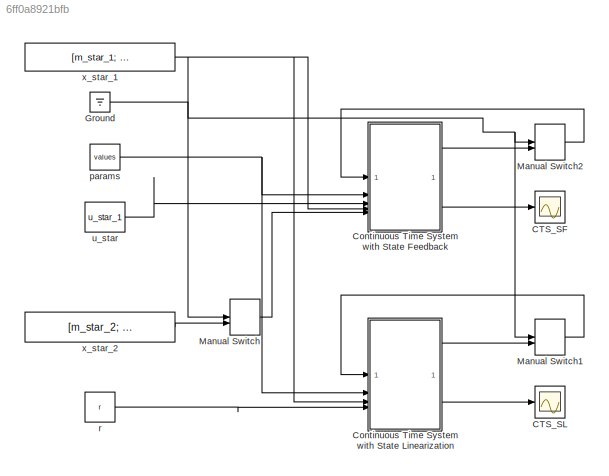
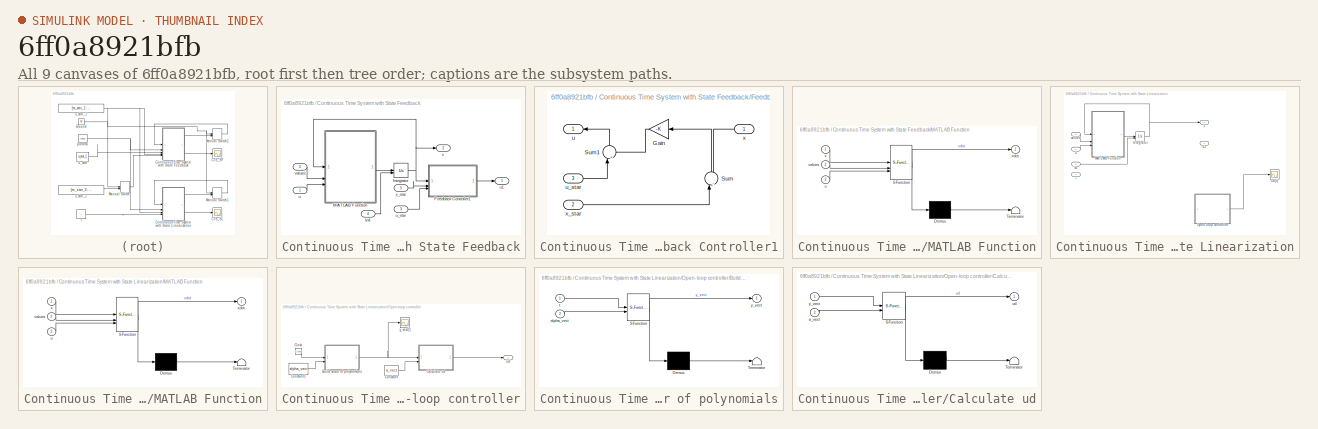
[diagram: thumbnail index - all 9 canvases of the model, root first then tree order]
MODEL slx_6ff0a8921bfb
KIND model
CONFIG AbsTol = auto
CONFIG EnableMultiTasking = off
CONFIG FixedStep = auto
CONFIG MaxStep = auto
CONFIG MinStep = auto
CONFIG RelTol = 1e-3
CONFIG SampleTimeConstraint = Unconstrained
CONFIG SolverName = VariableStepAuto
CONFIG StartTime = 0.0
CONFIG StopTime = 10.0
BLOCK [Scope] CTS_SF
  Floating = off
  NumInputPorts = 1
  ScopeSpecificationString = Simulink.scopes.TimeScopeBlockCfg('CurrentConfiguration', extmgr.ConfigurationSet(extmgr.Configuration('Core','General UI',true),extmgr.Configuration('Core','Source UI',true),extmgr.Configuration('Sources','WiredSimulink',true,'DataLoggingVariableName','ScopeData1'),extmgr.Configuration('Visuals','Time Domain',true,'SerializedDisplays',{struct('MinYLimReal','-341.0277','MaxYLimReal','524.18947','Y...<+1689ch>
BLOCK [Scope] CTS_SL
  Floating = off
  NumInputPorts = 1
  ScopeSpecificationString = Simulink.scopes.TimeScopeBlockCfg('CurrentConfiguration', extmgr.ConfigurationSet(extmgr.Configuration('Core','General UI',true),extmgr.Configuration('Core','Source UI',true),extmgr.Configuration('Sources','WiredSimulink',true),extmgr.Configuration('Visuals','Time Domain',true,'SerializedDisplays',{struct('MinYLimReal','-16.38534','MaxYLimReal','496.64074','YLabelReal','','MinYLimMag','0.00000','M...<+1626ch>
BLOCK [SubSystem] Continuous Time System with State Feedback
BLOCK [SubSystem] Continuous Time System with State Feedback/Feedback Controller1
BLOCK [Gain] Continuous Time System with State Feedback/Feedback Controller1/Gain
  Gain = -K
  Multiplication = Matrix(K*u)
  NameLocation = top
BLOCK [Sum] Continuous Time System with State Feedback/Feedback Controller1/Sum
  Inputs = |-+
  NameLocation = right
BLOCK [Sum] Continuous Time System with State Feedback/Feedback Controller1/Sum1
  Inputs = |++
  NameLocation = right
BLOCK [Outport] Continuous Time System with State Feedback/Feedback Controller1/u
  NameLocation = top
BLOCK [Inport] Continuous Time System with State Feedback/Feedback Controller1/u_star
  Port = 3
BLOCK [Inport] Continuous Time System with State Feedback/Feedback Controller1/x
  NameLocation = top
BLOCK [Inport] Continuous Time System with State Feedback/Feedback Controller1/x_star
  Port = 2
BLOCK [Inport] Continuous Time System with State Feedback/In4
  Port = 4
BLOCK [Integrator] Continuous Time System with State Feedback/Integrator
  InitialConditionSource = external
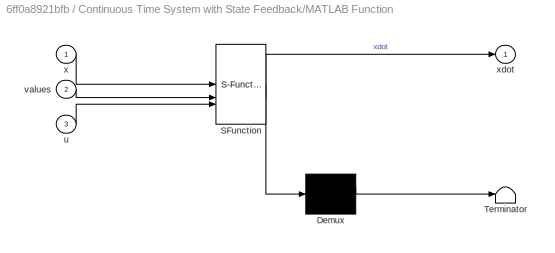
BLOCK [SubSystem] Continuous Time System with State Feedback/MATLAB Function
  ErrorFcn = Stateflow.Translate.translate
  PermitHierarchicalResolution = ExplicitOnly
  SFBlockType = MATLAB Function
  TreatAsAtomicUnit = on
BLOCK [Demux] Continuous Time System with State Feedback/MATLAB Function/ Demux 
  Outputs = 1
BLOCK [S-Function] Continuous Time System with State Feedback/MATLAB Function/ SFunction 
  EnableBusSupport = on
  FunctionName = sf_sfun
  PortCounts = [3 2]
  SFcnIsStateOwnerBlock = off
  SFunctionDeploymentMode = off
  Tag = Stateflow S-Function 2
BLOCK [Terminator] Continuous Time System with State Feedback/MATLAB Function/ Terminator 
BLOCK [Inport] Continuous Time System with State Feedback/MATLAB Function/u
  Port = 3
BLOCK [Inport] Continuous Time System with State Feedback/MATLAB Function/values
  Port = 2
BLOCK [Inport] Continuous Time System with State Feedback/MATLAB Function/x
BLOCK [Outport] Continuous Time System with State Feedback/MATLAB Function/xdot
BLOCK [Inport] Continuous Time System with State Feedback/u
BLOCK [Outport] Continuous Time System with State Feedback/u1
BLOCK [Inport] Continuous Time System with State Feedback/u_star
  Port = 3
BLOCK [Inport] Continuous Time System with State Feedback/values
  Port = 2
BLOCK [Outport] Continuous Time System with State Feedback/x
  Port = 2
BLOCK [Inport] Continuous Time System with State Feedback/x_star
  Port = 5
BLOCK [SubSystem] Continuous Time System with State Linearization
BLOCK [Integrator] Continuous Time System with State Linearization/Integrator
  InitialConditionSource = external
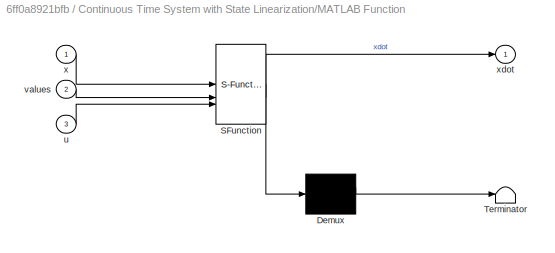
BLOCK [SubSystem] Continuous Time System with State Linearization/MATLAB Function
  ErrorFcn = Stateflow.Translate.translate
  PermitHierarchicalResolution = ExplicitOnly
  SFBlockType = MATLAB Function
  TreatAsAtomicUnit = on
BLOCK [Demux] Continuous Time System with State Linearization/MATLAB Function/ Demux 
  Outputs = 1
BLOCK [S-Function] Continuous Time System with State Linearization/MATLAB Function/ SFunction 
  EnableBusSupport = on
  FunctionName = sf_sfun
  PortCounts = [3 2]
  SFcnIsStateOwnerBlock = off
  SFunctionDeploymentMode = off
  Tag = Stateflow S-Function 1
BLOCK [Terminator] Continuous Time System with State Linearization/MATLAB Function/ Terminator 
BLOCK [Inport] Continuous Time System with State Linearization/MATLAB Function/u
  Port = 3
BLOCK [Inport] Continuous Time System with State Linearization/MATLAB Function/values
  Port = 2
BLOCK [Inport] Continuous Time System with State Linearization/MATLAB Function/x
BLOCK [Outport] Continuous Time System with State Linearization/MATLAB Function/xdot
BLOCK [SubSystem] Continuous Time System with State Linearization/Open-loop controller
BLOCK [SubSystem] Continuous Time System with State Linearization/Open-loop controller/Build vector of polynomials
  ErrorFcn = Stateflow.Translate.translate
  PermitHierarchicalResolution = ExplicitOnly
  SFBlockType = MATLAB Function
  TreatAsAtomicUnit = on
BLOCK [Demux] Continuous Time System with State Linearization/Open-loop controller/Build vector of polynomials/ Demux 
  Outputs = 1
BLOCK [S-Function] Continuous Time System with State Linearization/Open-loop controller/Build vector of polynomials/ SFunction 
  EnableBusSupport = off
  FunctionName = sf_sfun
  PortCounts = [2 2]
  SFcnIsStateOwnerBlock = off
  SFunctionDeploymentMode = off
  Tag = Stateflow S-Function 4
BLOCK [Terminator] Continuous Time System with State Linearization/Open-loop controller/Build vector of polynomials/ Terminator 
BLOCK [Inport] Continuous Time System with State Linearization/Open-loop controller/Build vector of polynomials/alpha_vect
  Port = 2
BLOCK [Inport] Continuous Time System with State Linearization/Open-loop controller/Build vector of polynomials/t
BLOCK [Outport] Continuous Time System with State Linearization/Open-loop controller/Build vector of polynomials/y_vect
BLOCK [SubSystem] Continuous Time System with State Linearization/Open-loop controller/Calculate ud
  ErrorFcn = Stateflow.Translate.translate
  PermitHierarchicalResolution = ExplicitOnly
  SFBlockType = MATLAB Function
  TreatAsAtomicUnit = on
BLOCK [Demux] Continuous Time System with State Linearization/Open-loop controller/Calculate ud/ Demux 
  Outputs = 1
BLOCK [S-Function] Continuous Time System with State Linearization/Open-loop controller/Calculate ud/ SFunction 
  EnableBusSupport = off
  FunctionName = sf_sfun
  PortCounts = [2 2]
  SFcnIsStateOwnerBlock = off
  SFunctionDeploymentMode = off
  Tag = Stateflow S-Function 5
BLOCK [Terminator] Continuous Time System with State Linearization/Open-loop controller/Calculate ud/ Terminator 
BLOCK [Inport] Continuous Time System with State Linearization/Open-loop controller/Calculate ud/a_vect
  Port = 2
BLOCK [Outport] Continuous Time System with State Linearization/Open-loop controller/Calculate ud/ud
BLOCK [Inport] Continuous Time System with State Linearization/Open-loop controller/Calculate ud/y_vect
BLOCK [Clock] Continuous Time System with State Linearization/Open-loop controller/Clock
BLOCK [Constant] Continuous Time System with State Linearization/Open-loop controller/Constant
  Value = a_vect
  VectorParams1D = off
BLOCK [Constant] Continuous Time System with State Linearization/Open-loop controller/Constant1
  Value = alpha_vect
  VectorParams1D = off
BLOCK [Outport] Continuous Time System with State Linearization/Open-loop controller/ud
BLOCK [Scope] Continuous Time System with State Linearization/Open-loop controller/y_vect(t)
  Floating = off
  NumInputPorts = 1
  ScopeSpecificationString = Simulink.scopes.TimeScopeBlockCfg('CurrentConfiguration', extmgr.ConfigurationSet(extmgr.Configuration('Core','General UI',true),extmgr.Configuration('Core','Source UI',true),extmgr.Configuration('Sources','WiredSimulink',true,'DataLoggingVariableName','ScopeData5'),extmgr.Configuration('Visuals','Time Domain',true,'SerializedDisplays',{struct('MinYLimReal','-18.99518','MaxYLimReal','113.22169','Y...<+1494ch>
BLOCK [Inport] Continuous Time System with State Linearization/r
  Port = 4
BLOCK [Inport] Continuous Time System with State Linearization/u
BLOCK [Outport] Continuous Time System with State Linearization/u2
BLOCK [Scope] Continuous Time System with State Linearization/ud(t)
  Floating = off
  NumInputPorts = 1
  ScopeSpecificationString = Simulink.scopes.TimeScopeBlockCfg('CurrentConfiguration', extmgr.ConfigurationSet(extmgr.Configuration('Core','General UI',true),extmgr.Configuration('Core','Source UI',true),extmgr.Configuration('Sources','WiredSimulink',true,'DataLoggingVariableName','ScopeData2'),extmgr.Configuration('Visuals','Time Domain',true,'SerializedDisplays',{struct('MinYLimReal','-0.01957','MaxYLimReal','0.17581','YLab...<+1409ch>
BLOCK [Inport] Continuous Time System with State Linearization/values
  Port = 2
BLOCK [Outport] Continuous Time System with State Linearization/x
  Port = 2
BLOCK [Inport] Continuous Time System with State Linearization/x0
  Port = 3
BLOCK [Ground] Ground
BLOCK [ManualSwitch] Manual Switch
  CurrentSetting = 0
BLOCK [ManualSwitch] Manual Switch1
  CurrentSetting = 0
BLOCK [ManualSwitch] Manual Switch2
  CurrentSetting = 0
BLOCK [Constant] params
  Value = values
BLOCK [Constant] r
  Value = r
BLOCK [Constant] u_star
  Value = u_star_1
BLOCK [Constant] x_star_1
  Value = [m_star_1; omega_star_1]
BLOCK [Constant] x_star_2
  Value = [m_star_2; omega_star_2]
LINE Continuous Time System with State Feedback/Feedback Controller1/Gain:1 -> Continuous Time System with State Feedback/Feedback Controller1/Sum1:2
LINE Continuous Time System with State Feedback/Feedback Controller1/Sum1:1 -> Continuous Time System with State Feedback/Feedback Controller1/u:1
LINE Continuous Time System with State Feedback/Feedback Controller1/Sum:1 -> Continuous Time System with State Feedback/Feedback Controller1/Gain:1
LINE Continuous Time System with State Feedback/Feedback Controller1/u_star:1 -> Continuous Time System with State Feedback/Feedback Controller1/Sum1:1
LINE Continuous Time System with State Feedback/Feedback Controller1/x:1 -> Continuous Time System with State Feedback/Feedback Controller1/Sum:2
LINE Continuous Time System with State Feedback/Feedback Controller1/x_star:1 -> Continuous Time System with State Feedback/Feedback Controller1/Sum:1
LINE Continuous Time System with State Feedback/Feedback Controller1:1 -> Continuous Time System with State Feedback/u1:1
LINE Continuous Time System with State Feedback/In4:1 -> Continuous Time System with State Feedback/Integrator:2
NET Continuous Time System with State Feedback/Integrator:1 -> Continuous Time System with State Feedback/Feedback Controller1:1, Continuous Time System with State Feedback/MATLAB Function:1, Continuous Time System with State Feedback/x:1
LINE Continuous Time System with State Feedback/MATLAB Function:1 -> Continuous Time System with State Feedback/Integrator:1
LINE Continuous Time System with State Feedback/u:1 -> Continuous Time System with State Feedback/MATLAB Function:3
LINE Continuous Time System with State Feedback/u_star:1 -> Continuous Time System with State Feedback/Feedback Controller1:3
LINE Continuous Time System with State Feedback/values:1 -> Continuous Time System with State Feedback/MATLAB Function:2
LINE Continuous Time System with State Feedback/x_star:1 -> Continuous Time System with State Feedback/Feedback Controller1:2
LINE Continuous Time System with State Feedback:1 -> Manual Switch2:2
LINE Continuous Time System with State Feedback:2 -> CTS_SF:1
NET Continuous Time System with State Linearization/Integrator:1 -> Continuous Time System with State Linearization/MATLAB Function:1, Continuous Time System with State Linearization/x:1
LINE Continuous Time System with State Linearization/MATLAB Function:1 -> Continuous Time System with State Linearization/Integrator:1
NET Continuous Time System with State Linearization/Open-loop controller/Build vector of polynomials:1 -> Continuous Time System with State Linearization/Open-loop controller/Calculate ud:1, Continuous Time System with State Linearization/Open-loop controller/y_vect(t):1
LINE Continuous Time System with State Linearization/Open-loop controller/Calculate ud:1 -> Continuous Time System with State Linearization/Open-loop controller/ud:1
LINE Continuous Time System with State Linearization/Open-loop controller/Clock:1 -> Continuous Time System with State Linearization/Open-loop controller/Build vector of polynomials:1
LINE Continuous Time System with State Linearization/Open-loop controller/Constant1:1 -> Continuous Time System with State Linearization/Open-loop controller/Build vector of polynomials:2
LINE Continuous Time System with State Linearization/Open-loop controller/Constant:1 -> Continuous Time System with State Linearization/Open-loop controller/Calculate ud:2
LINE Continuous Time System with State Linearization/Open-loop controller:1 -> Continuous Time System with State Linearization/ud(t):1
LINE Continuous Time System with State Linearization/u:1 -> Continuous Time System with State Linearization/MATLAB Function:3
LINE Continuous Time System with State Linearization/values:1 -> Continuous Time System with State Linearization/MATLAB Function:2
LINE Continuous Time System with State Linearization/x0:1 -> Continuous Time System with State Linearization/Integrator:2
LINE Continuous Time System with State Linearization:1 -> Manual Switch1:2
LINE Continuous Time System with State Linearization:2 -> CTS_SL:1
NET Ground:1 -> Manual Switch1:1, Manual Switch2:1
LINE Manual Switch1:1 -> Continuous Time System with State Linearization:1
LINE Manual Switch2:1 -> Continuous Time System with State Feedback:1
LINE Manual Switch:1 -> Continuous Time System with State Feedback:5
NET params:1 -> Continuous Time System with State Feedback:2, Continuous Time System with State Linearization:2
LINE r:1 -> Continuous Time System with State Linearization:4
LINE u_star:1 -> Continuous Time System with State Feedback:3
NET x_star_1:1 -> Continuous Time System with State Feedback:4, Continuous Time System with State Linearization:3, Manual Switch:1
LINE x_star_2:1 -> Manual Switch:2
note: NET lines group one-source signal fan-out (src -> all destinations, sorted); 1:1 wires keep LINE
CHART Continuous Time System with State Feedback/MATLAB Function states=1 transitions=1
  STATE_LABEL 'eML_blk_kernel()'
  STATE_LABEL 'SCRIPT:\nfunction xdot = fcn(x, values, u)\n\nq1 = values(1);\nq2 = values(2);\nq3 = values(3);\nJ = values(4);\n\nxdot = [-q1*x(2)*x(1) + u;\n         q2/J*x(1) - q3/J*x(2)];'
CHART Continuous Time System with State Linearization/Open-loop controller/Build vector of polynomials states=1 transitions=1
  STATE_LABEL 'eML_blk_kernel()'
  STATE_LABEL "SCRIPT:\nfunction y_vect = fcn(t,alpha_vect)\n\n\nt_vect0 = [ 1 ; t ; t^2 ; t^3 ; t^4 ; t^5 ]; % vector of t values\nt_vect1 = [ 0 ; 1 ; 2*t ; 3*t^2 ; 4*t^3 ; 5*t^4 ]; % derivative of t_vect0\nt_vect2 = [ 0 ; 0 ; 2 ; 2*3*t ; 3*4*t^2 ; 4*5*t^3 ]; % derivative of t_vect1\nt_vect3 = [ 0 ; 0 ; 0 ; 2*3 ; 2*3*4*t ; 3*4*5*t^2 ]; % derivative of t_vect2\n\n\n\nyd = t_vect0'*alpha_vect;\nyd_dot = t_vect1'*alpha_vect;\n...<+108ch>"
CHART Continuous Time System with State Linearization/Open-loop controller/Calculate ud states=1 transitions=1
  STATE_LABEL 'eML_blk_kernel()'
  STATE_LABEL "SCRIPT:\nfunction ud = fcn(y_vect,a_vect)\n\nae_vect = [ a_vect ; 1 ];\n\n\n% computation open-loop input\nud = ae_vect' * y_vect;\n\n"
CHART Continuous Time System with State Linearization/MATLAB Function states=1 transitions=1
  STATE_LABEL 'eML_blk_kernel()'
  STATE_LABEL 'SCRIPT:\nfunction xdot = fcn(x, values, u)\n\nq1 = values(1);\nq2 = values(2);\nq3 = values(3);\nJ = values(4);\n\nxdot = [-q1*x(2)*x(1) + u;\n         q2/J*x(1) - q3/J*x(2)];'
CHART  states=0 transitions=0
CHART  states=0 transitions=0
CHART  states=0 transitions=0
CHART  states=0 transitions=0
